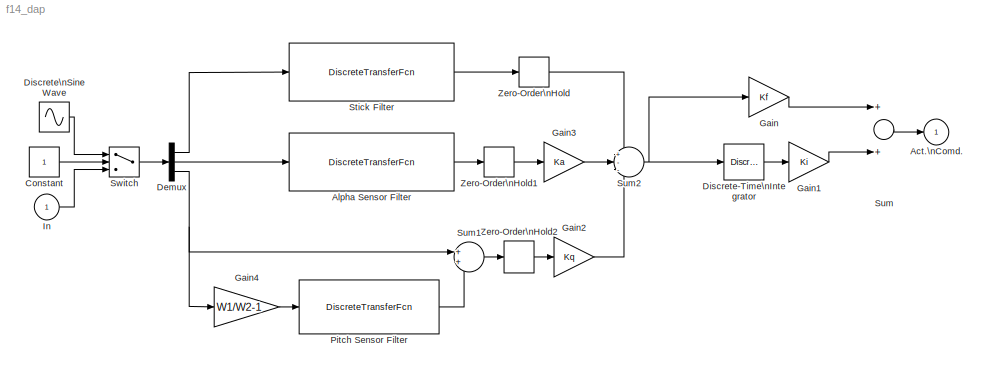
MODEL f14_dap
KIND model
CONFIG PreLoadFcn = f14dat
BLOCK [Outport] Act.\nComd.
  IconDisplay = Port number
  InitialOutput = 0
BLOCK [DiscreteTransferFcn] Alpha Sensor Filter
  Denominator = [1 -exp(-deltat1/Tal)]
  Numerator = [1-exp(-deltat1/Tal)]
  SampleTime = deltat1
BLOCK [Constant] Constant
BLOCK [Demux] Demux
  Outputs = 3
  Ports = [1, 3]
BLOCK [DiscreteIntegrator] Discrete-Time\nIntegrator
  ExternalReset = none
  ICPrevOutput = DiscIntNeverNeededParam
  ICPrevScaledInput = DiscIntNeverNeededParam
  InitialConditionSource = internal
  IntegratorMethod = Integration: Forward Euler
  Ports = [1, 1]
  SampleTime = deltat
BLOCK [Sin] Discrete\nSine Wave
  Frequency = [1 2 3]
  Ports = [0, 1]
  SampleTime = deltat1
  SineType = Time based
BLOCK [Gain] Gain
  Gain = Kf
BLOCK [Gain] Gain1
  Gain = Ki
BLOCK [Gain] Gain2
  Gain = Kq
  MaskIconFrame = on
  MaskIconOpaque = on
  MaskIconRotate = none
  MaskIconUnits = autoscale
BLOCK [Gain] Gain3
  Gain = Ka
  MaskIconFrame = on
  MaskIconOpaque = on
  MaskIconRotate = none
  MaskIconUnits = autoscale
BLOCK [Gain] Gain4
  Gain = W1/W2-1
  MaskIconFrame = on
  MaskIconOpaque = on
  MaskIconRotate = none
  MaskIconUnits = autoscale
BLOCK [Inport] In
  IconDisplay = Port number
  LatchInput = off
  Port = 1
BLOCK [DiscreteTransferFcn] Pitch Sensor Filter
  Denominator = [1 -exp(-W2*deltat1)]
  Numerator = [1-exp(-W2*deltat1)]
  SampleTime = deltat1
BLOCK [DiscreteTransferFcn] Stick Filter
  Denominator = [1 -exp(-deltat1/Ts)]
  Numerator = [1-exp(-deltat1/Ts)]
  SampleTime = deltat1
BLOCK [Sum] Sum
  Inputs = 2
  Ports = [2, 1]
BLOCK [Sum] Sum1
  IconShape = round
  Inputs = 2
  Ports = [2, 1]
BLOCK [Sum] Sum2
  IconShape = round
  Inputs = +--
  Ports = [3, 1]
BLOCK [Switch] Switch
BLOCK [ZeroOrderHold] Zero-Order\nHold
  SampleTime = deltat
BLOCK [ZeroOrderHold] Zero-Order\nHold1
  SampleTime = deltat
BLOCK [ZeroOrderHold] Zero-Order\nHold2
  SampleTime = deltat
LINE Alpha Sensor Filter:1 -> Zero-Order\nHold1:1
LINE Constant:1 -> Switch:2
LINE Demux:1 -> Stick Filter:1
LINE Demux:2 -> Alpha Sensor Filter:1
NET Demux:3 -> Gain4:1, Sum1:1
LINE Discrete-Time\nIntegrator:1 -> Gain1:1
LINE Discrete\nSine Wave:1 -> Switch:1
LINE Gain1:1 -> Sum:2
LINE Gain2:1 -> Sum2:3
LINE Gain3:1 -> Sum2:2
LINE Gain4:1 -> Pitch Sensor Filter:1
LINE Gain:1 -> Sum:1
LINE In:1 -> Switch:3
LINE Pitch Sensor Filter:1 -> Sum1:2
LINE Stick Filter:1 -> Zero-Order\nHold:1
LINE Sum1:1 -> Zero-Order\nHold2:1
NET Sum2:1 -> Discrete-Time\nIntegrator:1, Gain:1
LINE Sum:1 -> Act.\nComd.:1
LINE Switch:1 -> Demux:1
LINE Zero-Order\nHold1:1 -> Gain3:1
LINE Zero-Order\nHold2:1 -> Gain2:1
LINE Zero-Order\nHold:1 -> Sum2:1
note: NET lines group one-source signal fan-out (src -> all destinations, sorted); 1:1 wires keep LINE
